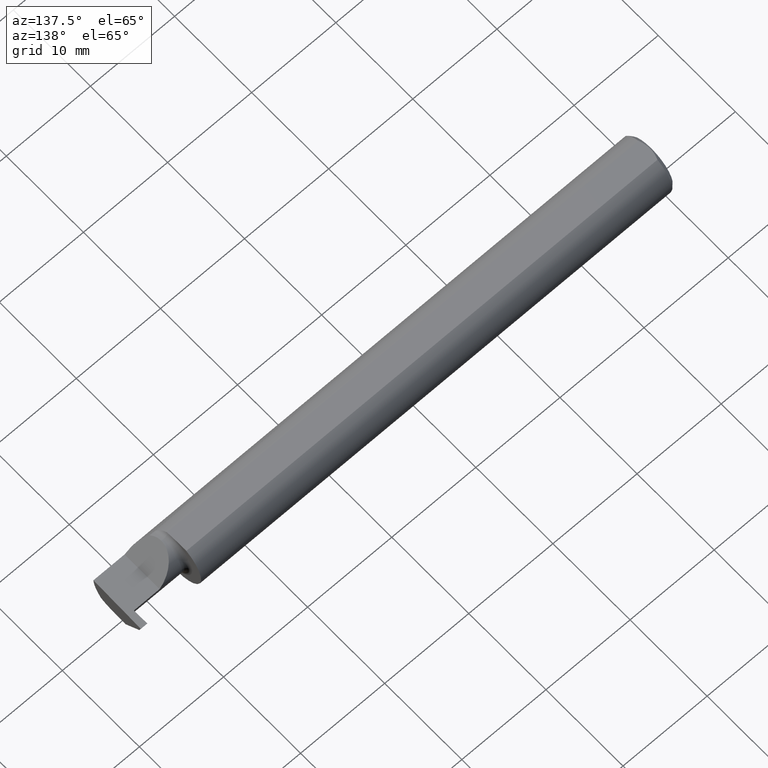
[diagram: clean part render]
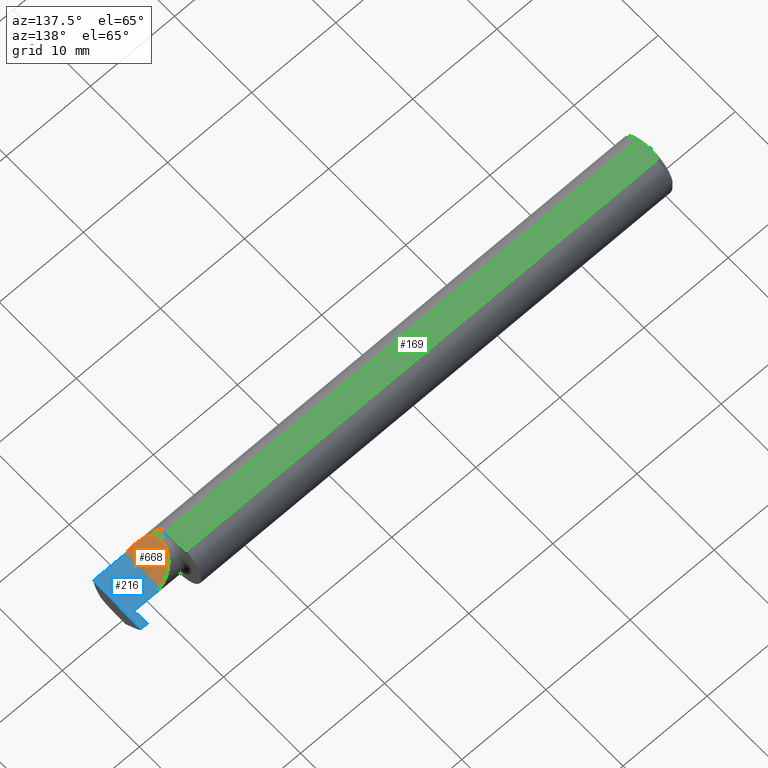
[diagram: same view with three faces highlighted in distinct colors, each labeled with its STEP entity id]
A machine part, auxiliary view with three faces highlighted in distinct colors.
Their STEP definitions:

[orange] entity #668 — the highlighted planar face has unit normal (-0.7071, 0, -0.7071).
#3 = VERTEX_POINT ( 'NONE', #682 ) ;
#38 = ORIENTED_EDGE ( 'NONE', *, *, #445, .F. ) ;
#41 = CARTESIAN_POINT ( 'NONE',  ( 2.350000000000000089, -0.1248500000000000026, 1.836970198721028825E-17 ) ) ;
#61 = DIRECTION ( 'NONE',  ( -0.7071067811865492381, 0.000000000000000000, -0.7071067811865459074 ) ) ;
#66 = CARTESIAN_POINT ( 'NONE',  ( 2.252000000000000668, -0.04385000000000001397, 0.09800000000000000377 ) ) ;
#101 = CARTESIAN_POINT ( 'NONE',  ( 2.350000000000000089, -0.2000000000000000111, 1.836970198721028825E-17 ) ) ;
#110 =( BOUNDED_CURVE ( )  B_SPLINE_CURVE ( 3, ( #147, #506, #683, #401 ),
 .UNSPECIFIED., .F., .T. ) 
 B_SPLINE_CURVE_WITH_KNOTS ( ( 4, 4 ),
 ( 0.000000000000000000, 1.570796326794896558 ),
 .UNSPECIFIED. ) 
 CURVE ( )  GEOMETRIC_REPRESENTATION_ITEM ( )  RATIONAL_B_SPLINE_CURVE ( ( 1.000000000000000000, 0.8047378541243649375, 0.8047378541243649375, 1.000000000000000000 ) ) 
 REPRESENTATION_ITEM ( '' )  );
#147 = CARTESIAN_POINT ( 'NONE',  ( 2.252000000000000668, -0.04385000000000001397, 0.09800000000000000377 ) ) ;
#161 = EDGE_CURVE ( 'NONE', #263, #3, #407, .T. ) ;
#176 = CARTESIAN_POINT ( 'NONE',  ( 2.350000000000000089, -0.1248500000000000026, 1.836970198721028825E-17 ) ) ;
#182 = CARTESIAN_POINT ( 'NONE',  ( 2.252000000000000668, -0.06008937020638503712, 0.09799999999999998990 ) ) ;
#207 = VERTEX_POINT ( 'NONE', #783 ) ;
#217 = CARTESIAN_POINT ( 'NONE',  ( 2.263628075281542529, -0.09015216647662421812, 0.08637192471845822617 ) ) ;
#225 =( BOUNDED_CURVE ( )  B_SPLINE_CURVE ( 3, ( #264, #612, #182, #426 ),
 .UNSPECIFIED., .F., .F. ) 
 B_SPLINE_CURVE_WITH_KNOTS ( ( 4, 4 ),
 ( 5.791092865617133434, 6.283185307179586232 ),
 .UNSPECIFIED. ) 
 CURVE ( )  GEOMETRIC_REPRESENTATION_ITEM ( )  RATIONAL_B_SPLINE_CURVE ( ( 1.000000000000000000, 0.9799220177372784946, 0.9799220177372784946, 1.000000000000000000 ) ) 
 REPRESENTATION_ITEM ( '' )  );
#256 = DIRECTION ( 'NONE',  ( -0.7071067811865459074, 0.000000000000000000, 0.7071067811865492381 ) ) ;
#263 = VERTEX_POINT ( 'NONE', #176 ) ;
#264 = CARTESIAN_POINT ( 'NONE',  ( 2.263628075281542529, -0.09015216647662421812, 0.08637192471845822617 ) ) ;
#355 = CARTESIAN_POINT ( 'NONE',  ( 2.287163018370355072, -0.1127002472623169216, 0.06283698162964553025 ) ) ;
#365 = VERTEX_POINT ( 'NONE', #66 ) ;
#373 = PLANE ( 'NONE',  #389 ) ;
#389 = AXIS2_PLACEMENT_3D ( 'NONE', #606, #61, #256 ) ;
#401 = CARTESIAN_POINT ( 'NONE',  ( 2.350000000000000089, 0.05414999999999988572, 1.836970198721028825E-17 ) ) ;
#407 = LINE ( 'NONE', #101, #728 ) ;
#426 = CARTESIAN_POINT ( 'NONE',  ( 2.252000000000000668, -0.04385000000000001397, 0.09800000000000000377 ) ) ;
#445 = EDGE_CURVE ( 'NONE', #263, #207, #516, .T. ) ;
#484 = FACE_OUTER_BOUND ( 'NONE', #583, .T. ) ;
#506 = CARTESIAN_POINT ( 'NONE',  ( 2.252000000000000668, 0.01355707088743670317, 0.09799999999999996214 ) ) ;
#516 =( BOUNDED_CURVE ( )  B_SPLINE_CURVE ( 3, ( #41, #543, #355, #217 ),
 .UNSPECIFIED., .F., .F. ) 
 B_SPLINE_CURVE_WITH_KNOTS ( ( 4, 4 ),
 ( 4.712388980384690562, 5.476375539154175520 ),
 .UNSPECIFIED. ) 
 CURVE ( )  GEOMETRIC_REPRESENTATION_ITEM ( )  RATIONAL_B_SPLINE_CURVE ( ( 1.000000000000000000, 0.9519489620492029847, 0.9519489620492029847, 1.000000000000000000 ) ) 
 REPRESENTATION_ITEM ( '' )  );
#543 = CARTESIAN_POINT ( 'NONE',  ( 2.317406910344188997, -0.1248500000000000304, 0.03259308965581166062 ) ) ;
#549 = ORIENTED_EDGE ( 'NONE', *, *, #781, .F. ) ;
#567 = ORIENTED_EDGE ( 'NONE', *, *, #585, .F. ) ;
#583 = EDGE_LOOP ( 'NONE', ( #567, #38, #611, #549 ) ) ;
#585 = EDGE_CURVE ( 'NONE', #207, #365, #225, .T. ) ;
#606 = CARTESIAN_POINT ( 'NONE',  ( 2.350000000000000089, -0.2000000000000000111, 1.836970198721028825E-17 ) ) ;
#611 = ORIENTED_EDGE ( 'NONE', *, *, #161, .T. ) ;
#612 = CARTESIAN_POINT ( 'NONE',  ( 2.255955442396118560, -0.07583965973232772995, 0.09404455760388213958 ) ) ;
#668 = ADVANCED_FACE ( 'NONE', ( #484 ), #373, .F. ) ;
#682 = CARTESIAN_POINT ( 'NONE',  ( 2.350000000000000089, 0.05414999999999988572, 1.836970198721028825E-17 ) ) ;
#683 = CARTESIAN_POINT ( 'NONE',  ( 2.292592929112563738, 0.05415000000000004532, 0.05740707088743669112 ) ) ;
#728 = VECTOR ( 'NONE', #764, 39.37007874015748143 ) ;
#764 = DIRECTION ( 'NONE',  ( -0.000000000000000000, 1.000000000000000000, -0.000000000000000000 ) ) ;
#781 = EDGE_CURVE ( 'NONE', #365, #3, #110, .T. ) ;
#783 = CARTESIAN_POINT ( 'NONE',  ( 2.263628075281542529, -0.09015216647662421812, 0.08637192471845822617 ) ) ;

[blue] entity #216 — the highlighted planar face has unit normal (-0, 0, -1).
#3 = VERTEX_POINT ( 'NONE', #682 ) ;
#27 = VECTOR ( 'NONE', #464, 39.37007874015748143 ) ;
#36 = DIRECTION ( 'NONE',  ( 1.000000000000000000, 0.000000000000000000, 0.000000000000000000 ) ) ;
#52 = EDGE_LOOP ( 'NONE', ( #601, #372, #722, #174, #425, #259, #519 ) ) ;
#55 = CARTESIAN_POINT ( 'NONE',  ( 2.500000000000000000, -0.2000000000000000111, 0.000000000000000000 ) ) ;
#92 = CARTESIAN_POINT ( 'NONE',  ( 2.220000000000000195, 0.05414999999999998981, 3.429011037612586318E-17 ) ) ;
#93 = EDGE_CURVE ( 'NONE', #430, #394, #112, .T. ) ;
#101 = CARTESIAN_POINT ( 'NONE',  ( 2.350000000000000089, -0.2000000000000000111, 1.836970198721028825E-17 ) ) ;
#112 = LINE ( 'NONE', #358, #388 ) ;
#123 = VERTEX_POINT ( 'NONE', #710 ) ;
#133 = VERTEX_POINT ( 'NONE', #705 ) ;
#161 = EDGE_CURVE ( 'NONE', #263, #3, #407, .T. ) ;
#174 = ORIENTED_EDGE ( 'NONE', *, *, #582, .T. ) ;
#176 = CARTESIAN_POINT ( 'NONE',  ( 2.350000000000000089, -0.1248500000000000026, 1.836970198721028825E-17 ) ) ;
#188 = DIRECTION ( 'NONE',  ( -1.000000000000000000, 0.000000000000000000, 1.224646799147352221E-16 ) ) ;
#195 = AXIS2_PLACEMENT_3D ( 'NONE', #55, #670, #188 ) ;
#210 = CARTESIAN_POINT ( 'NONE',  ( 2.500000000000000000, 0.1221500000000000224, 1.614031285319217924E-16 ) ) ;
#214 = CARTESIAN_POINT ( 'NONE',  ( 2.500000000000000000, 0.05414999999999998981, -4.082792423329594993E-33 ) ) ;
#216 = ADVANCED_FACE ( 'NONE', ( #371 ), #303, .F. ) ;
#253 = DIRECTION ( 'NONE',  ( 1.000000000000000000, -0.000000000000000000, -0.000000000000000000 ) ) ;
#259 = ORIENTED_EDGE ( 'NONE', *, *, #532, .F. ) ;
#263 = VERTEX_POINT ( 'NONE', #176 ) ;
#274 = EDGE_CURVE ( 'NONE', #133, #394, #725, .T. ) ;
#279 = DIRECTION ( 'NONE',  ( 0.01744642479411244104, 0.9998477995484630343, -2.135106780035405654E-18 ) ) ;
#303 = PLANE ( 'NONE',  #195 ) ;
#333 = EDGE_CURVE ( 'NONE', #654, #123, #690, .T. ) ;
#358 = CARTESIAN_POINT ( 'NONE',  ( 2.494380489674781209, -0.1999019447116721915, 6.881915332554697616E-19 ) ) ;
#370 = LINE ( 'NONE', #496, #495 ) ;
#371 = FACE_OUTER_BOUND ( 'NONE', #52, .T. ) ;
#372 = ORIENTED_EDGE ( 'NONE', *, *, #93, .T. ) ;
#388 = VECTOR ( 'NONE', #279, 39.37007874015747433 ) ;
#394 = VERTEX_POINT ( 'NONE', #210 ) ;
#399 = LINE ( 'NONE', #92, #434 ) ;
#407 = LINE ( 'NONE', #101, #728 ) ;
#425 = ORIENTED_EDGE ( 'NONE', *, *, #333, .T. ) ;
#430 = VERTEX_POINT ( 'NONE', #444 ) ;
#434 = VECTOR ( 'NONE', #36, 39.37007874015748143 ) ;
#444 = CARTESIAN_POINT ( 'NONE',  ( 2.495690077103728921, -0.1248499999950964945, 8.800986592364463999E-18 ) ) ;
#459 = VECTOR ( 'NONE', #759, 39.37007874015748143 ) ;
#464 = DIRECTION ( 'NONE',  ( -1.000000000000000000, -0.000000000000000000, -0.000000000000000000 ) ) ;
#495 = VECTOR ( 'NONE', #669, 39.37007874015748143 ) ;
#496 = CARTESIAN_POINT ( 'NONE',  ( 2.475120418573686809, -0.2004334805406639275, 3.046869975786050435E-18 ) ) ;
#515 = EDGE_CURVE ( 'NONE', #430, #263, #645, .T. ) ;
#519 = ORIENTED_EDGE ( 'NONE', *, *, #161, .F. ) ;
#532 = EDGE_CURVE ( 'NONE', #3, #123, #399, .T. ) ;
#544 = CARTESIAN_POINT ( 'NONE',  ( 2.399999999999999911, 0.1221499999999999808, -3.306546357697866753E-19 ) ) ;
#582 = EDGE_CURVE ( 'NONE', #133, #654, #370, .T. ) ;
#601 = ORIENTED_EDGE ( 'NONE', *, *, #515, .F. ) ;
#616 = CARTESIAN_POINT ( 'NONE',  ( 2.470684773821554714, 0.05414999999999998981, 1.795039895285689590E-18 ) ) ;
#645 = LINE ( 'NONE', #762, #27 ) ;
#654 = VERTEX_POINT ( 'NONE', #616 ) ;
#669 = DIRECTION ( 'NONE',  ( 0.01742050049977532031, -0.9998482515673753346, -2.130797594924657633E-18 ) ) ;
#670 = DIRECTION ( 'NONE',  ( -1.224646799147352221E-16, 0.000000000000000000, -1.000000000000000000 ) ) ;
#682 = CARTESIAN_POINT ( 'NONE',  ( 2.350000000000000089, 0.05414999999999988572, 1.836970198721028825E-17 ) ) ;
#690 = LINE ( 'NONE', #214, #459 ) ;
#705 = CARTESIAN_POINT ( 'NONE',  ( 2.469500000000000028, 0.1221499999999999808, -3.306546357697866753E-19 ) ) ;
#710 = CARTESIAN_POINT ( 'NONE',  ( 2.469500000000000028, 0.05414999999999999675, 3.428995993117051746E-17 ) ) ;
#714 = VECTOR ( 'NONE', #253, 39.37007874015748143 ) ;
#722 = ORIENTED_EDGE ( 'NONE', *, *, #274, .F. ) ;
#725 = LINE ( 'NONE', #544, #714 ) ;
#728 = VECTOR ( 'NONE', #764, 39.37007874015748143 ) ;
#759 = DIRECTION ( 'NONE',  ( -1.000000000000000000, 1.311765892087511796E-16, 1.224646799147352221E-16 ) ) ;
#762 = CARTESIAN_POINT ( 'NONE',  ( 3.749399456654637998E-32, -0.1248500000000000026, 3.061616997868380676E-16 ) ) ;
#764 = DIRECTION ( 'NONE',  ( -0.000000000000000000, 1.000000000000000000, -0.000000000000000000 ) ) ;

[green] entity #169 — the highlighted planar face has unit normal (0, -0, 1).
#19 = DIRECTION ( 'NONE',  ( -1.000000000000000000, -0.000000000000000000, -0.000000000000000000 ) ) ;
#20 = ORIENTED_EDGE ( 'NONE', *, *, #77, .T. ) ;
#51 = CARTESIAN_POINT ( 'NONE',  ( 0.004999999999999962808, 0.008410227287019804779, 0.1148500000000000076 ) ) ;
#77 = EDGE_CURVE ( 'NONE', #570, #391, #168, .T. ) ;
#107 = CARTESIAN_POINT ( 'NONE',  ( 2.221090261106631658, -0.02916888161107700911, 0.1148499999999999938 ) ) ;
#111 = EDGE_CURVE ( 'NONE', #631, #706, #716, .T. ) ;
#121 = CARTESIAN_POINT ( 'NONE',  ( 0.004999999999999964542, -0.008410771716546819321, 0.1148500000000000215 ) ) ;
#139 = CARTESIAN_POINT ( 'NONE',  ( 2.221326891871132858, -0.04895916665958129077, 0.1148500000000000076 ) ) ;
#143 = CARTESIAN_POINT ( 'NONE',  ( 0.000000000000000000, 0.04895916665957456698, 0.1148500000000000076 ) ) ;
#146 = B_SPLINE_CURVE_WITH_KNOTS ( 'NONE', 3,
 ( #736, #121, #619, #315, #322, #306 ),
 .UNSPECIFIED., .F., .F.,
 ( 4, 2, 4 ),
 ( 0.003658435455108827606, 0.004289327297787134258, 0.004920219140465441343 ),
 .UNSPECIFIED. ) ;
#150 = ORIENTED_EDGE ( 'NONE', *, *, #467, .T. ) ;
#168 = LINE ( 'NONE', #773, #180 ) ;
#169 = ADVANCED_FACE ( 'NONE', ( #641 ), #352, .T. ) ;
#180 = VECTOR ( 'NONE', #473, 39.37007874015748143 ) ;
#192 = CARTESIAN_POINT ( 'NONE',  ( 2.221326891871132858, -0.04895916665958129077, 0.1148500000000000076 ) ) ;
#201 = CARTESIAN_POINT ( 'NONE',  ( 2.219999999999999751, 0.0001781444078671173391, 0.1148500000000000076 ) ) ;
#226 = CARTESIAN_POINT ( 'NONE',  ( 0.01499999999999999944, -0.04895916665957456698, 0.1148500000000000076 ) ) ;
#228 = CARTESIAN_POINT ( 'NONE',  ( 2.219999999999999751, 0.0001781444078671173391, 0.1148500000000000076 ) ) ;
#229 = ORIENTED_EDGE ( 'NONE', *, *, #312, .T. ) ;
#243 = LINE ( 'NONE', #397, #471 ) ;
#282 = EDGE_CURVE ( 'NONE', #483, #330, #523, .T. ) ;
#294 = B_SPLINE_CURVE_WITH_KNOTS ( 'NONE', 3,
 ( #192, #432, #538, #600, #300, #659 ),
 .UNSPECIFIED., .F., .F.,
 ( 4, 2, 4 ),
 ( 0.009355404735376996600, 0.009420041905751082301, 0.009484679076125166267 ),
 .UNSPECIFIED. ) ;
#300 = CARTESIAN_POINT ( 'NONE',  ( 2.221365755776839812, -0.04470142129451338403, 0.1148500000000000076 ) ) ;
#305 = EDGE_LOOP ( 'NONE', ( #20, #229, #676, #150, #691, #647, #454 ) ) ;
#306 = CARTESIAN_POINT ( 'NONE',  ( 0.01499999999999999944, -0.04895916665957456698, 0.1148500000000000076 ) ) ;
#311 = CARTESIAN_POINT ( 'NONE',  ( 2.221365755776839368, -0.04385000000000001397, 0.1148500000000000076 ) ) ;
#312 = EDGE_CURVE ( 'NONE', #391, #631, #294, .T. ) ;
#315 = CARTESIAN_POINT ( 'NONE',  ( 0.009415874254822407391, -0.03313958207962815206, 0.1148500000000000076 ) ) ;
#322 = CARTESIAN_POINT ( 'NONE',  ( 0.01195732443765547617, -0.04120008761723503027, 0.1148500000000000076 ) ) ;
#330 = VERTEX_POINT ( 'NONE', #367 ) ;
#352 = PLANE ( 'NONE',  #649 ) ;
#367 = CARTESIAN_POINT ( 'NONE',  ( 0.004999999999999990563, 1.454187663965904829E-17, 0.1148500000000000076 ) ) ;
#391 = VERTEX_POINT ( 'NONE', #139 ) ;
#396 = EDGE_CURVE ( 'NONE', #511, #483, #452, .T. ) ;
#397 = CARTESIAN_POINT ( 'NONE',  ( 2.219999999999999751, -0.1248500000000000165, 0.1148500000000000076 ) ) ;
#432 = CARTESIAN_POINT ( 'NONE',  ( 2.221339737566971451, -0.04810771334232701729, 0.1148500000000000215 ) ) ;
#452 = LINE ( 'NONE', #143, #715 ) ;
#454 = ORIENTED_EDGE ( 'NONE', *, *, #607, .T. ) ;
#467 = EDGE_CURVE ( 'NONE', #706, #511, #243, .T. ) ;
#468 = CARTESIAN_POINT ( 'NONE',  ( 2.221365755776839368, -0.04385000000000001397, 0.1148500000000000076 ) ) ;
#471 = VECTOR ( 'NONE', #599, 39.37007874015748143 ) ;
#473 = DIRECTION ( 'NONE',  ( 1.000000000000000000, 0.000000000000000000, 0.000000000000000000 ) ) ;
#483 = VERTEX_POINT ( 'NONE', #640 ) ;
#511 = VERTEX_POINT ( 'NONE', #512 ) ;
#512 = CARTESIAN_POINT ( 'NONE',  ( 2.219999999999999751, 0.04895916665957496944, 0.1148500000000000076 ) ) ;
#523 = B_SPLINE_CURVE_WITH_KNOTS ( 'NONE', 3,
 ( #592, #734, #551, #721, #51, #596 ),
 .UNSPECIFIED., .F., .F.,
 ( 4, 2, 4 ),
 ( 0.002396733445051244405, 0.003027584450080036006, 0.003658435455108827606 ),
 .UNSPECIFIED. ) ;
#529 = CARTESIAN_POINT ( 'NONE',  ( 2.219999999999999751, -0.007185495981951173228, 0.1148500000000000076 ) ) ;
#533 = DIRECTION ( 'NONE',  ( 1.000000000000000000, 0.000000000000000000, -0.000000000000000000 ) ) ;
#538 = CARTESIAN_POINT ( 'NONE',  ( 2.221349474459139106, -0.04725615951720512492, 0.1148499999999999938 ) ) ;
#551 = CARTESIAN_POINT ( 'NONE',  ( 0.009410502401328750890, 0.03310661131402438395, 0.1148499999999999938 ) ) ;
#570 = VERTEX_POINT ( 'NONE', #226 ) ;
#581 = DIRECTION ( 'NONE',  ( 0.000000000000000000, -0.000000000000000000, 1.000000000000000000 ) ) ;
#592 = CARTESIAN_POINT ( 'NONE',  ( 0.01499999999999987454, 0.04895916665957496944, 0.1148500000000000076 ) ) ;
#596 = CARTESIAN_POINT ( 'NONE',  ( 0.004999999999999990563, 1.454187663965904829E-17, 0.1148500000000000076 ) ) ;
#599 = DIRECTION ( 'NONE',  ( -0.000000000000000000, 1.000000000000000000, 0.000000000000000000 ) ) ;
#600 = CARTESIAN_POINT ( 'NONE',  ( 2.221362484147030081, -0.04555293790453718294, 0.1148500000000000076 ) ) ;
#607 = EDGE_CURVE ( 'NONE', #330, #570, #146, .T. ) ;
#619 = CARTESIAN_POINT ( 'NONE',  ( 0.005932194444709715242, -0.01671525318617308672, 0.1148499999999999938 ) ) ;
#631 = VERTEX_POINT ( 'NONE', #311 ) ;
#640 = CARTESIAN_POINT ( 'NONE',  ( 0.01499999999999987454, 0.04895916665957496944, 0.1148500000000000076 ) ) ;
#641 = FACE_OUTER_BOUND ( 'NONE', #305, .T. ) ;
#647 = ORIENTED_EDGE ( 'NONE', *, *, #282, .T. ) ;
#649 = AXIS2_PLACEMENT_3D ( 'NONE', #702, #581, #533 ) ;
#659 = CARTESIAN_POINT ( 'NONE',  ( 2.221365755776839368, -0.04385000000000001397, 0.1148500000000000076 ) ) ;
#676 = ORIENTED_EDGE ( 'NONE', *, *, #111, .T. ) ;
#691 = ORIENTED_EDGE ( 'NONE', *, *, #396, .T. ) ;
#696 = CARTESIAN_POINT ( 'NONE',  ( 2.221365755776838924, -0.03650542768109172470, 0.1148500000000000215 ) ) ;
#702 = CARTESIAN_POINT ( 'NONE',  ( 2.500000000000000000, -0.1248500000000000165, 0.1148500000000000076 ) ) ;
#706 = VERTEX_POINT ( 'NONE', #201 ) ;
#715 = VECTOR ( 'NONE', #19, 39.37007874015748143 ) ;
#716 = B_SPLINE_CURVE_WITH_KNOTS ( 'NONE', 3,
 ( #468, #696, #107, #770, #529, #228 ),
 .UNSPECIFIED., .F., .F.,
 ( 4, 2, 4 ),
 ( 0.009484679076125166267, 0.01004225541977700129, 0.01059983176342883804 ),
 .UNSPECIFIED. ) ;
#721 = CARTESIAN_POINT ( 'NONE',  ( 0.005947935873631229539, 0.01679708999422689641, 0.1148500000000000076 ) ) ;
#734 = CARTESIAN_POINT ( 'NONE',  ( 0.01193974418109659125, 0.04115525648180412555, 0.1148500000000000215 ) ) ;
#736 = CARTESIAN_POINT ( 'NONE',  ( 0.004999999999999990563, 1.454187663965904829E-17, 0.1148500000000000076 ) ) ;
#770 = CARTESIAN_POINT ( 'NONE',  ( 2.220400390612615737, -0.01449983562810952184, 0.1148500000000000076 ) ) ;
#773 = CARTESIAN_POINT ( 'NONE',  ( 0.000000000000000000, -0.04895916665957456698, 0.1148500000000000076 ) ) ;